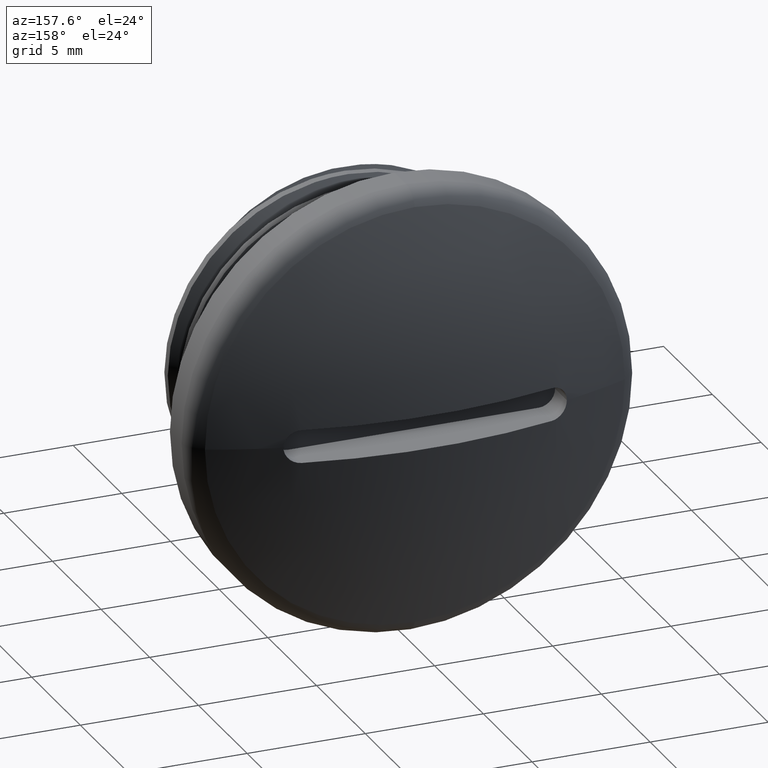
[diagram: clean part render]
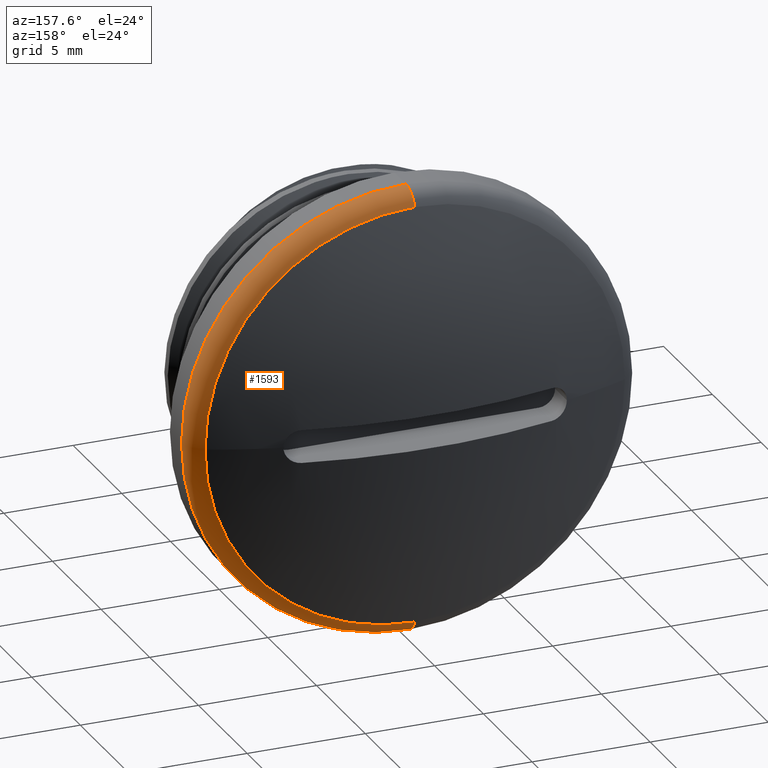
[diagram: same view with one face highlighted and labeled with its STEP entity id]
A machine part, auxiliary view. The second image highlights one B-rep face of the part: STEP entity #1593.
In plain terms, the highlighted toroidal blend (fillet) surface has major radius 8.5 mm and minor (blend) radius 1 mm.
Its self-contained STEP definition (entity closure, byte-faithful):
#1 = VERTEX_POINT ( 'NONE', #42 ) ;
#8 = VERTEX_POINT ( 'NONE', #48 ) ;
#11 = VERTEX_POINT ( 'NONE', #66 ) ;
#12 = VERTEX_POINT ( 'NONE', #54 ) ;
#24 = VERTEX_POINT ( 'NONE', #55 ) ;
#42 = CARTESIAN_POINT ( 'NONE',  ( 8.889040541108345300, 7.971550136318401600, -1.088593504615939300E-015 ) ) ;
#48 = CARTESIAN_POINT ( 'NONE',  ( 0.0000000000000000000, 7.971550136318403400, -8.889040541108345300 ) ) ;
#54 = CARTESIAN_POINT ( 'NONE',  ( 0.0000000000000000000, 7.050329501847959300, -9.500000000000001800 ) ) ;
#55 = CARTESIAN_POINT ( 'NONE',  ( 1.163414459189985700E-015, 7.050329501847959300, 9.500000000000001800 ) ) ;
#66 = CARTESIAN_POINT ( 'NONE',  ( 1.126003981902962300E-015, 7.971550136318403400, 8.889040541108345300 ) ) ;
#105 = CARTESIAN_POINT ( 'NONE',  ( 0.0000000000000000000, 7.971550136318403400, 0.0000000000000000000 ) ) ;
#108 = DIRECTION ( 'NONE',  ( -0.0000000000000000000, -1.000000000000000000, -0.0000000000000000000 ) ) ;
#109 = DIRECTION ( 'NONE',  ( 0.0000000000000000000, 0.0000000000000000000, -1.000000000000000000 ) ) ;
#110 = CARTESIAN_POINT ( 'NONE',  ( 0.0000000000000000000, 7.971550136318403400, 0.0000000000000000000 ) ) ;
#112 = DIRECTION ( 'NONE',  ( -0.0000000000000000000, -1.000000000000000000, -0.0000000000000000000 ) ) ;
#115 = DIRECTION ( 'NONE',  ( 0.0000000000000000000, 0.0000000000000000000, -1.000000000000000000 ) ) ;
#183 = CIRCLE ( 'NONE', #187, 1.000000000000000900 ) ;
#184 = CIRCLE ( 'NONE', #185, 1.000000000000000900 ) ;
#185 = AXIS2_PLACEMENT_3D ( 'NONE', #1323, #1325, #1324 ) ;
#187 = AXIS2_PLACEMENT_3D ( 'NONE', #1329, #1330, #1331 ) ;
#204 = CIRCLE ( 'NONE', #205, 9.500000000000001800 ) ;
#205 = AXIS2_PLACEMENT_3D ( 'NONE', #1566, #1554, #1555 ) ;
#306 = AXIS2_PLACEMENT_3D ( 'NONE', #105, #108, #109 ) ;
#308 = CIRCLE ( 'NONE', #306, 8.889040541108345300 ) ;
#316 = CIRCLE ( 'NONE', #317, 8.889040541108345300 ) ;
#317 = AXIS2_PLACEMENT_3D ( 'NONE', #110, #112, #115 ) ;
#345 = ORIENTED_EDGE ( 'NONE', *, *, #1368, .T. ) ;
#357 = ORIENTED_EDGE ( 'NONE', *, *, #1365, .T. ) ;
#403 = ORIENTED_EDGE ( 'NONE', *, *, #1389, .F. ) ;
#412 = EDGE_LOOP ( 'NONE', ( #357, #421, #413, #403, #345 ) ) ;
#413 = ORIENTED_EDGE ( 'NONE', *, *, #1412, .F. ) ;
#421 = ORIENTED_EDGE ( 'NONE', *, *, #1387, .T. ) ;
#979 = FACE_OUTER_BOUND ( 'NONE', #412, .T. ) ;
#985 = DIRECTION ( 'NONE',  ( -0.0000000000000000000, -1.000000000000000000, -0.0000000000000000000 ) ) ;
#992 = DIRECTION ( 'NONE',  ( 0.0000000000000000000, 0.0000000000000000000, -1.000000000000000000 ) ) ;
#1015 = CARTESIAN_POINT ( 'NONE',  ( 0.0000000000000000000, 7.050329501847959300, 0.0000000000000000000 ) ) ;
#1323 = CARTESIAN_POINT ( 'NONE',  ( 1.040949779275250100E-015, 7.050329501847959300, 8.500000000000000000 ) ) ;
#1324 = DIRECTION ( 'NONE',  ( -1.224646799147353500E-016, 0.0000000000000000000, -1.000000000000000000 ) ) ;
#1325 = DIRECTION ( 'NONE',  ( 1.000000000000000000, 0.0000000000000000000, -1.224646799147353200E-016 ) ) ;
#1329 = CARTESIAN_POINT ( 'NONE',  ( 0.0000000000000000000, 7.050329501847959300, -8.500000000000000000 ) ) ;
#1330 = DIRECTION ( 'NONE',  ( -1.000000000000000000, 0.0000000000000000000, 0.0000000000000000000 ) ) ;
#1331 = DIRECTION ( 'NONE',  ( 0.0000000000000000000, 0.0000000000000000000, 1.000000000000000000 ) ) ;
#1365 = EDGE_CURVE ( 'NONE', #1, #11, #316, .T. ) ;
#1368 = EDGE_CURVE ( 'NONE', #8, #1, #308, .T. ) ;
#1387 = EDGE_CURVE ( 'NONE', #11, #24, #184, .T. ) ;
#1389 = EDGE_CURVE ( 'NONE', #8, #12, #183, .T. ) ;
#1412 = EDGE_CURVE ( 'NONE', #12, #24, #204, .T. ) ;
#1504 = AXIS2_PLACEMENT_3D ( 'NONE', #1015, #985, #992 ) ;
#1522 = TOROIDAL_SURFACE ( 'NONE', #1504, 8.500000000000000000, 1.000000000000000900 ) ;
#1554 = DIRECTION ( 'NONE',  ( -0.0000000000000000000, -1.000000000000000000, -0.0000000000000000000 ) ) ;
#1555 = DIRECTION ( 'NONE',  ( 0.0000000000000000000, 0.0000000000000000000, -1.000000000000000000 ) ) ;
#1566 = CARTESIAN_POINT ( 'NONE',  ( 0.0000000000000000000, 7.050329501847959300, 0.0000000000000000000 ) ) ;
#1593 = ADVANCED_FACE ( 'NONE', ( #979 ), #1522, .T. ) ;